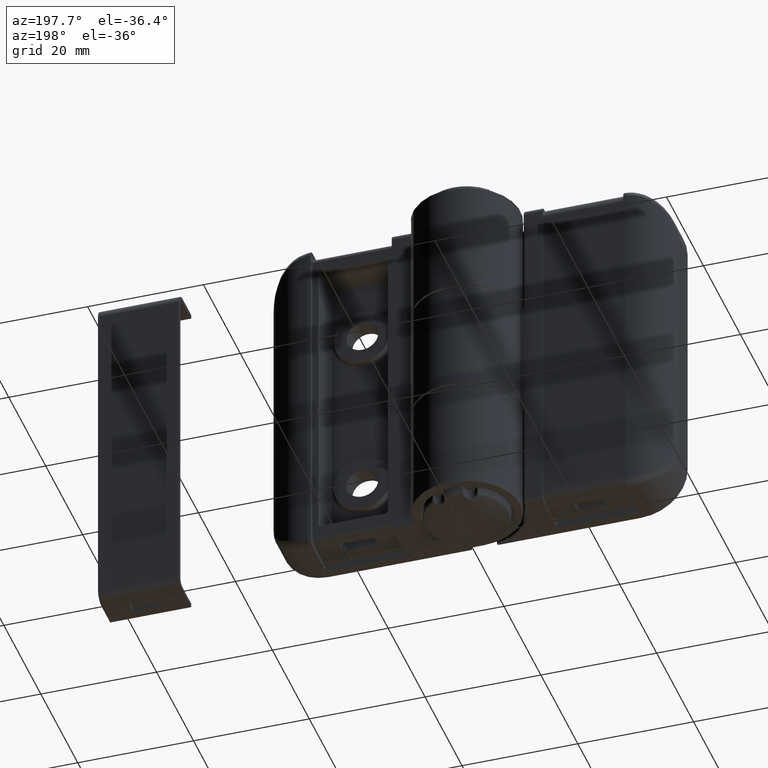
[diagram: clean part render]
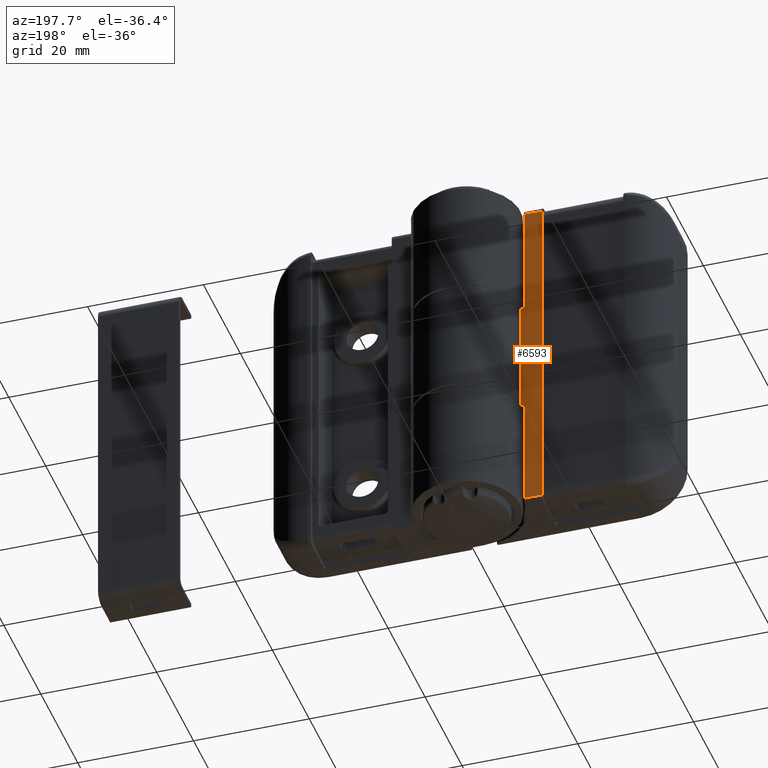
[diagram: same view with one face highlighted and labeled with its STEP entity id]
A machine part, auxiliary view. The second image highlights one B-rep face of the part: STEP entity #6593.
In plain terms, the highlighted planar face has unit normal (0, 1, 0).
Its self-contained STEP definition (entity closure, byte-faithful):
#427=PLANE('',#7032);
#566=LINE('',#9749,#982);
#571=LINE('',#9776,#987);
#573=LINE('',#9793,#989);
#574=LINE('',#9798,#990);
#575=LINE('',#9800,#991);
#576=LINE('',#9802,#992);
#577=LINE('',#9804,#993);
#578=LINE('',#9805,#994);
#982=VECTOR('',#7792,0.897989746677469);
#987=VECTOR('',#7823,19.4);
#989=VECTOR('',#7843,0.897989746677469);
#990=VECTOR('',#7848,19.1);
#991=VECTOR('',#7849,3.05201025332253);
#992=VECTOR('',#7850,58.);
#993=VECTOR('',#7851,3.05201025332253);
#994=VECTOR('',#7852,19.1);
#1541=FACE_OUTER_BOUND('',#1959,.T.);
#1959=EDGE_LOOP('',(#4534,#4535,#4536,#4537,#4538,#4539,#4540,#4541,#4542,
#4543));
#2416=CIRCLE('',#7004,0.2);
#2424=CIRCLE('',#7016,0.2);
#2805=VERTEX_POINT('',#9734);
#2806=VERTEX_POINT('',#9736);
#2810=VERTEX_POINT('',#9748);
#2816=VERTEX_POINT('',#9761);
#2817=VERTEX_POINT('',#9763);
#2825=VERTEX_POINT('',#9791);
#2827=VERTEX_POINT('',#9797);
#2828=VERTEX_POINT('',#9799);
#2829=VERTEX_POINT('',#9801);
#2830=VERTEX_POINT('',#9803);
#3472=EDGE_CURVE('',#2805,#2806,#2416,.F.);
#3478=EDGE_CURVE('',#2806,#2810,#566,.F.);
#3485=EDGE_CURVE('',#2816,#2817,#2424,.F.);
#3492=EDGE_CURVE('',#2805,#2817,#571,.T.);
#3499=EDGE_CURVE('',#2816,#2825,#573,.F.);
#3501=EDGE_CURVE('',#2827,#2825,#574,.T.);
#3502=EDGE_CURVE('',#2828,#2827,#575,.T.);
#3503=EDGE_CURVE('',#2829,#2828,#576,.T.);
#3504=EDGE_CURVE('',#2830,#2829,#577,.T.);
#3505=EDGE_CURVE('',#2810,#2830,#578,.T.);
#4534=ORIENTED_EDGE('',*,*,#3492,.T.);
#4535=ORIENTED_EDGE('',*,*,#3485,.F.);
#4536=ORIENTED_EDGE('',*,*,#3499,.T.);
#4537=ORIENTED_EDGE('',*,*,#3501,.F.);
#4538=ORIENTED_EDGE('',*,*,#3502,.F.);
#4539=ORIENTED_EDGE('',*,*,#3503,.F.);
#4540=ORIENTED_EDGE('',*,*,#3504,.F.);
#4541=ORIENTED_EDGE('',*,*,#3505,.F.);
#4542=ORIENTED_EDGE('',*,*,#3478,.F.);
#4543=ORIENTED_EDGE('',*,*,#3472,.F.);
#6593=ADVANCED_FACE('',(#1541),#427,.T.);
#7004=AXIS2_PLACEMENT_3D('',#9737,#7779,#7780);
#7016=AXIS2_PLACEMENT_3D('',#9764,#7807,#7808);
#7032=AXIS2_PLACEMENT_3D('',#9796,#7846,#7847);
#7779=DIRECTION('center_axis',(0.,-1.,0.));
#7780=DIRECTION('ref_axis',(1.,0.,0.));
#7792=DIRECTION('',(-1.,0.,0.));
#7807=DIRECTION('center_axis',(0.,-1.,0.));
#7808=DIRECTION('ref_axis',(1.,0.,0.));
#7823=DIRECTION('',(0.,0.,1.));
#7843=DIRECTION('',(-1.,0.,0.));
#7846=DIRECTION('center_axis',(0.,1.,0.));
#7847=DIRECTION('ref_axis',(-1.,0.,0.));
#7848=DIRECTION('',(0.,0.,-1.));
#7849=DIRECTION('',(-1.,0.,0.));
#7850=DIRECTION('',(0.,0.,1.));
#7851=DIRECTION('',(1.,0.,0.));
#7852=DIRECTION('',(0.,0.,-1.));
#9734=CARTESIAN_POINT('',(9.25,0.,20.3));
#9736=CARTESIAN_POINT('',(9.05,-5.55111512312578E-16,20.1));
#9737=CARTESIAN_POINT('Origin',(9.05,0.,20.3));
#9748=CARTESIAN_POINT('',(9.94798974667747,0.,20.1));
#9749=CARTESIAN_POINT('',(6.75,0.,20.1));
#9761=CARTESIAN_POINT('',(9.05,-5.55111512312578E-16,39.9));
#9763=CARTESIAN_POINT('',(9.25,0.,39.7));
#9764=CARTESIAN_POINT('Origin',(9.05,0.,39.7));
#9776=CARTESIAN_POINT('',(9.25,0.,20.2));
#9791=CARTESIAN_POINT('',(9.94798974667747,0.,39.9));
#9793=CARTESIAN_POINT('',(6.75,0.,39.9));
#9796=CARTESIAN_POINT('Origin',(13.5,0.,0.));
#9797=CARTESIAN_POINT('',(9.94798974667747,-1.43114686768087E-15,59.));
#9798=CARTESIAN_POINT('',(9.94798974667747,0.,60.));
#9799=CARTESIAN_POINT('',(13.,0.,59.));
#9800=CARTESIAN_POINT('',(6.75,0.,59.));
#9801=CARTESIAN_POINT('',(13.,0.,1.));
#9802=CARTESIAN_POINT('',(13.,0.,0.));
#9803=CARTESIAN_POINT('',(9.94798974667747,-1.51788304147971E-16,1.));
#9804=CARTESIAN_POINT('',(6.75,0.,1.));
#9805=CARTESIAN_POINT('',(9.94798974667747,0.,0.));